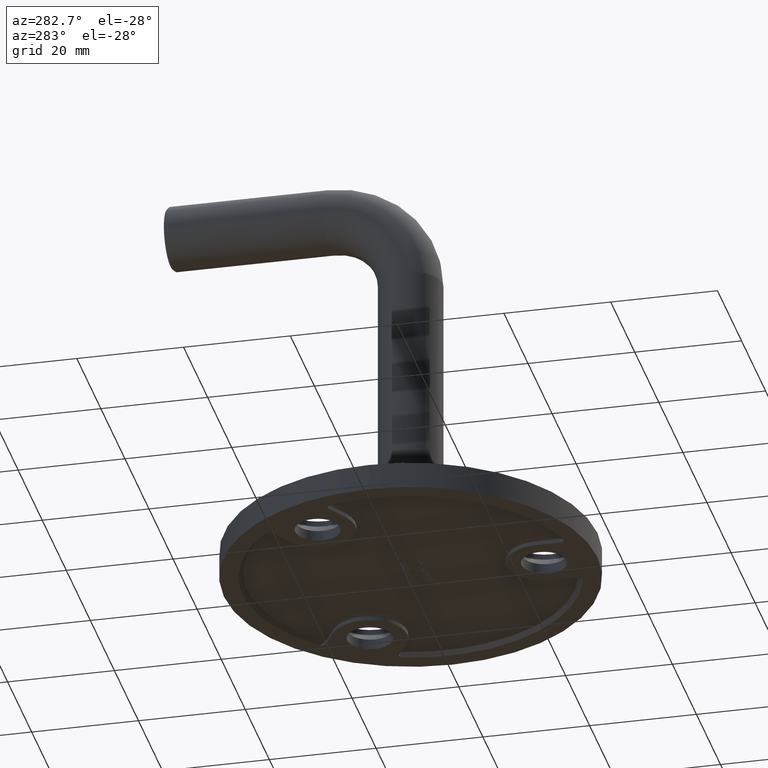
[diagram: clean part render]
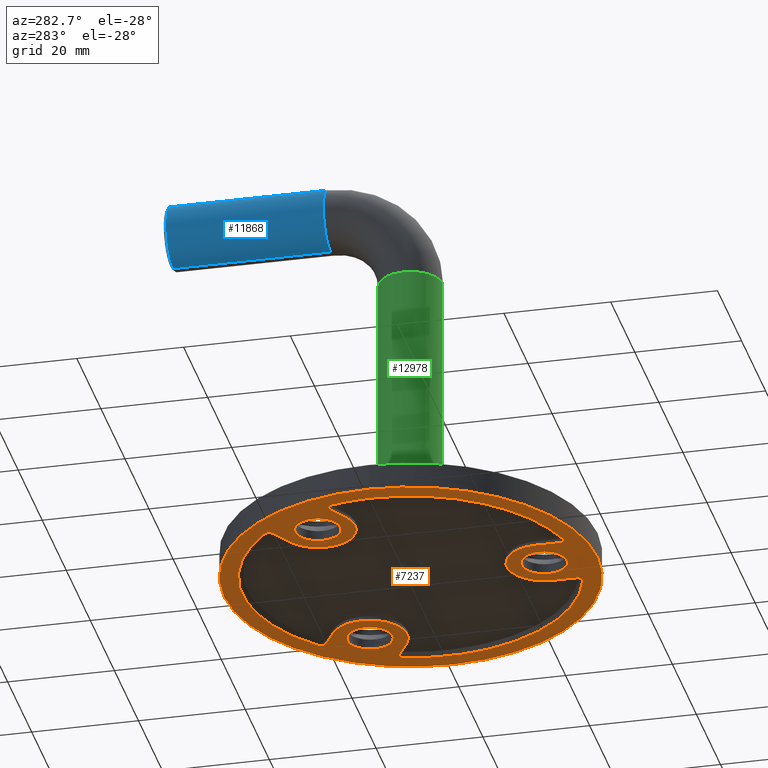
[diagram: same view with three faces highlighted in distinct colors, each labeled with its STEP entity id]
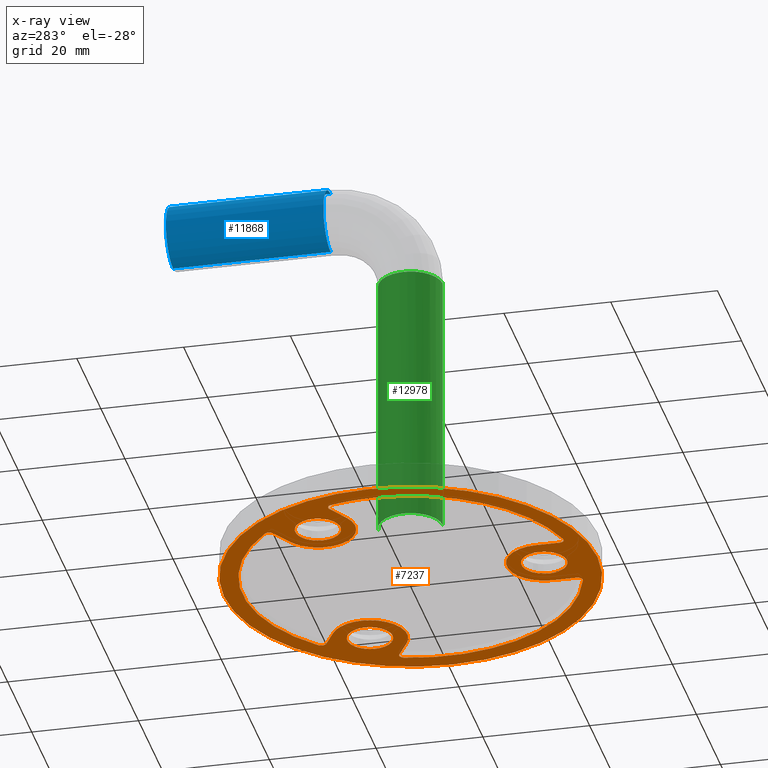
[diagram: x-ray of the same camera — body ghosted, the three highlighted faces saturated]
A machine part, auxiliary view with three faces highlighted in distinct colors.
The next image is the same camera in x-ray (body ghosted, the three faces saturated) — at least one of them is partly hidden behind the body in this view.
Their STEP definitions:

[orange] entity #7237 — the highlighted planar face has unit normal (0, 0, 1).
#19 = AXIS2_PLACEMENT_3D ( 'NONE', #1636, #12571, #5297 ) ;
#47 = DIRECTION ( 'NONE',  ( 0.000000000000000000, -0.000000000000000000, 1.000000000000000000 ) ) ;
#63 = EDGE_CURVE ( 'NONE', #10253, #5619, #292, .T. ) ;
#79 = CIRCLE ( 'NONE', #4569, 7.000000000000000888 ) ;
#117 = CARTESIAN_POINT ( 'NONE',  ( 0.000000000000000000, 0.000000000000000000, 0.000000000000000000 ) ) ;
#179 = FACE_BOUND ( 'NONE', #9836, .T. ) ;
#184 = DIRECTION ( 'NONE',  ( 1.000000000000000000, 0.000000000000000000, 0.000000000000000000 ) ) ;
#280 = ORIENTED_EDGE ( 'NONE', *, *, #14609, .T. ) ;
#292 = LINE ( 'NONE', #11759, #3884 ) ;
#293 = CARTESIAN_POINT ( 'NONE',  ( 0.000000000000000000, -25.00000000000000000, 0.000000000000000000 ) ) ;
#397 = EDGE_CURVE ( 'NONE', #12085, #13762, #4830, .T. ) ;
#404 = EDGE_CURVE ( 'NONE', #7116, #9426, #5951, .T. ) ;
#458 = VERTEX_POINT ( 'NONE', #6313 ) ;
#605 = CARTESIAN_POINT ( 'NONE',  ( -29.48896820194971724, 7.787859422485657213, 0.000000000000000000 ) ) ;
#614 = VERTEX_POINT ( 'NONE', #1264 ) ;
#644 = EDGE_CURVE ( 'NONE', #2695, #3890, #13179, .T. ) ;
#698 = DIRECTION ( 'NONE',  ( 0.000000000000000000, -0.000000000000000000, -1.000000000000000000 ) ) ;
#789 = DIRECTION ( 'NONE',  ( -1.000000000000000000, 0.000000000000000000, 0.000000000000000000 ) ) ;
#841 = DIRECTION ( 'NONE',  ( 0.000000000000000000, 0.000000000000000000, -1.000000000000000000 ) ) ;
#873 = CIRCLE ( 'NONE', #3705, 4.250000000000000000 ) ;
#884 = CARTESIAN_POINT ( 'NONE',  ( -22.19352453644000889, 22.35391394477565896, 0.000000000000000000 ) ) ;
#991 = CIRCLE ( 'NONE', #4791, 35.00000000000000000 ) ;
#1103 = EDGE_CURVE ( 'NONE', #7207, #2695, #79, .T. ) ;
#1264 = CARTESIAN_POINT ( 'NONE',  ( 8.262295081967211630, -30.39711302045805752, 0.000000000000000000 ) ) ;
#1267 = ORIENTED_EDGE ( 'NONE', *, *, #6871, .F. ) ;
#1471 = CARTESIAN_POINT ( 'NONE',  ( 6.999999999999999112, -29.43212530552288086, -0.000000000000000000 ) ) ;
#1492 = ORIENTED_EDGE ( 'NONE', *, *, #397, .T. ) ;
#1515 = EDGE_CURVE ( 'NONE', #1951, #6525, #12030, .T. ) ;
#1594 = VECTOR ( 'NONE', #3576, 1000.000000000000000 ) ;
#1636 = CARTESIAN_POINT ( 'NONE',  ( 0.000000000000000000, 0.000000000000000000, 0.000000000000000000 ) ) ;
#1702 = CIRCLE ( 'NONE', #9381, 0.9999999999999985567 ) ;
#1839 = DIRECTION ( 'NONE',  ( 0.000000000000000000, -0.000000000000000000, -1.000000000000000000 ) ) ;
#1851 = CIRCLE ( 'NONE', #8233, 0.9999999999999985567 ) ;
#1951 = VERTEX_POINT ( 'NONE', #15226 ) ;
#2045 = CARTESIAN_POINT ( 'NONE',  ( -8.000000000000000000, -29.43212530552288086, 0.000000000000000000 ) ) ;
#2154 = EDGE_LOOP ( 'NONE', ( #13505, #5982 ) ) ;
#2209 = EDGE_CURVE ( 'NONE', #7378, #7810, #991, .T. ) ;
#2321 = VERTEX_POINT ( 'NONE', #4692 ) ;
#2492 = DIRECTION ( 'NONE',  ( 0.5000000000000039968, -0.8660254037844364872, 0.000000000000000000 ) ) ;
#2534 = EDGE_CURVE ( 'NONE', #6081, #14891, #3649, .T. ) ;
#2664 = DIRECTION ( 'NONE',  ( 0.8660254037844363761, 0.5000000000000039968, 0.000000000000000000 ) ) ;
#2695 = VERTEX_POINT ( 'NONE', #11308 ) ;
#2798 = DIRECTION ( 'NONE',  ( -1.000000000000000000, 0.000000000000000000, 0.000000000000000000 ) ) ;
#2821 = DIRECTION ( 'NONE',  ( 0.5000000000000043299, -0.8660254037844362651, 0.000000000000000000 ) ) ;
#2868 = DIRECTION ( 'NONE',  ( 0.000000000000000000, -1.000000000000000000, 0.000000000000000000 ) ) ;
#2999 = CARTESIAN_POINT ( 'NONE',  ( 29.48896820194961421, 7.787859422486070216, 0.000000000000000000 ) ) ;
#3098 = AXIS2_PLACEMENT_3D ( 'NONE', #15090, #14261, #7885 ) ;
#3154 = CARTESIAN_POINT ( 'NONE',  ( -22.48896820194985224, 21.64426588303675203, 0.000000000000000000 ) ) ;
#3184 = DIRECTION ( 'NONE',  ( 0.000000000000000000, 0.000000000000000000, 1.000000000000000000 ) ) ;
#3250 = ORIENTED_EDGE ( 'NONE', *, *, #3898, .T. ) ;
#3271 = AXIS2_PLACEMENT_3D ( 'NONE', #2045, #10382, #14137 ) ;
#3279 = VERTEX_POINT ( 'NONE', #884 ) ;
#3371 = AXIS2_PLACEMENT_3D ( 'NONE', #7981, #1839, #15290 ) ;
#3404 = CARTESIAN_POINT ( 'NONE',  ( 0.000000000000000000, 0.000000000000000000, 0.000000000000000000 ) ) ;
#3468 = CARTESIAN_POINT ( 'NONE',  ( -6.999999999999999112, -25.00000000000000000, 0.000000000000000000 ) ) ;
#3569 = CARTESIAN_POINT ( 'NONE',  ( 25.15063509461094071, 6.437822173509048618, 0.000000000000000000 ) ) ;
#3576 = DIRECTION ( 'NONE',  ( -0.000000000000000000, 1.000000000000000000, -0.000000000000000000 ) ) ;
#3591 = EDGE_CURVE ( 'NONE', #13762, #10253, #7216, .T. ) ;
#3648 = CARTESIAN_POINT ( 'NONE',  ( 0.000000000000000000, -25.00000000000000000, 0.000000000000000000 ) ) ;
#3649 = CIRCLE ( 'NONE', #7416, 6.999999999999999112 ) ;
#3705 = AXIS2_PLACEMENT_3D ( 'NONE', #8519, #15585, #10912 ) ;
#3884 = VECTOR ( 'NONE', #2868, 1000.000000000000000 ) ;
#3890 = VERTEX_POINT ( 'NONE', #11250 ) ;
#3898 = EDGE_CURVE ( 'NONE', #12417, #2321, #1702, .T. ) ;
#3961 = VERTEX_POINT ( 'NONE', #6714 ) ;
#4091 = DIRECTION ( 'NONE',  ( -0.5000000000000041078, 0.8660254037844362651, 0.000000000000000000 ) ) ;
#4164 = EDGE_CURVE ( 'NONE', #14143, #9961, #13942, .T. ) ;
#4278 = CARTESIAN_POINT ( 'NONE',  ( -8.262295081967213406, -30.39711302045805397, 0.000000000000000000 ) ) ;
#4373 = EDGE_CURVE ( 'NONE', #9426, #7116, #873, .T. ) ;
#4395 = AXIS2_PLACEMENT_3D ( 'NONE', #14433, #15638, #12147 ) ;
#4569 = AXIS2_PLACEMENT_3D ( 'NONE', #7987, #698, #12794 ) ;
#4659 = EDGE_CURVE ( 'NONE', #3890, #7316, #11114, .T. ) ;
#4692 = CARTESIAN_POINT ( 'NONE',  ( -21.98896820194984159, 20.77824047925230744, 0.000000000000000000 ) ) ;
#4742 = AXIS2_PLACEMENT_3D ( 'NONE', #6132, #47, #8524 ) ;
#4791 = AXIS2_PLACEMENT_3D ( 'NONE', #14534, #8497, #184 ) ;
#4830 = LINE ( 'NONE', #3468, #1594 ) ;
#4840 = ORIENTED_EDGE ( 'NONE', *, *, #12706, .T. ) ;
#5072 = DIRECTION ( 'NONE',  ( -0.8660254037844432595, 0.4999999999999919509, 0.000000000000000000 ) ) ;
#5153 = AXIS2_PLACEMENT_3D ( 'NONE', #11471, #13752, #2821 ) ;
#5206 = ORIENTED_EDGE ( 'NONE', *, *, #7346, .T. ) ;
#5218 = EDGE_CURVE ( 'NONE', #3279, #14523, #12745, .T. ) ;
#5297 = DIRECTION ( 'NONE',  ( 1.000000000000000000, 0.000000000000000000, -0.000000000000000000 ) ) ;
#5393 = DIRECTION ( 'NONE',  ( 0.000000000000000000, -0.000000000000000000, -1.000000000000000000 ) ) ;
#5452 = CARTESIAN_POINT ( 'NONE',  ( -35.00000000000000000, 0.000000000000000000, 0.000000000000000000 ) ) ;
#5517 = DIRECTION ( 'NONE',  ( 0.000000000000000000, 0.000000000000000000, 1.000000000000000000 ) ) ;
#5540 = ORIENTED_EDGE ( 'NONE', *, *, #63, .T. ) ;
#5613 = DIRECTION ( 'NONE',  ( 0.000000000000000000, 0.000000000000000000, 1.000000000000000000 ) ) ;
#5619 = VERTEX_POINT ( 'NONE', #1471 ) ;
#5620 = AXIS2_PLACEMENT_3D ( 'NONE', #117, #7451, #13572 ) ;
#5696 = ORIENTED_EDGE ( 'NONE', *, *, #5218, .F. ) ;
#5951 = CIRCLE ( 'NONE', #9947, 4.250000000000000000 ) ;
#5982 = ORIENTED_EDGE ( 'NONE', *, *, #1515, .F. ) ;
#5994 = CARTESIAN_POINT ( 'NONE',  ( 4.250000000000000000, -25.00000000000000000, 0.000000000000000000 ) ) ;
#6081 = VERTEX_POINT ( 'NONE', #3569 ) ;
#6112 = CIRCLE ( 'NONE', #3271, 0.9999999999999991118 ) ;
#6132 = CARTESIAN_POINT ( 'NONE',  ( 8.000000000000000000, -29.43212530552288086, -0.000000000000000000 ) ) ;
#6187 = DIRECTION ( 'NONE',  ( 0.000000000000000000, 0.000000000000000000, -1.000000000000000000 ) ) ;
#6219 = DIRECTION ( 'NONE',  ( -1.000000000000000000, 0.000000000000000000, 0.000000000000000000 ) ) ;
#6242 = AXIS2_PLACEMENT_3D ( 'NONE', #605, #3184, #10401 ) ;
#6303 = EDGE_CURVE ( 'NONE', #8814, #458, #14387, .T. ) ;
#6313 = CARTESIAN_POINT ( 'NONE',  ( 17.40063509461091229, 12.49999999999995737, 0.000000000000000000 ) ) ;
#6350 = CARTESIAN_POINT ( 'NONE',  ( 0.000000000000000000, 0.000000000000000000, 0.000000000000000000 ) ) ;
#6525 = VERTEX_POINT ( 'NONE', #8787 ) ;
#6586 = ORIENTED_EDGE ( 'NONE', *, *, #3591, .T. ) ;
#6602 = EDGE_LOOP ( 'NONE', ( #10675, #8416, #1492, #6586, #5540, #4840, #12418, #5206, #8783, #13921, #15615, #280, #11256, #5696, #14062, #3250, #9312, #10684, #14452, #13012, #15313 ) ) ;
#6618 = CARTESIAN_POINT ( 'NONE',  ( -7.000000000000000888, -29.43212530552288086, 0.000000000000000000 ) ) ;
#6714 = CARTESIAN_POINT ( 'NONE',  ( 21.98896820194955382, 20.77824047925261652, 0.000000000000000000 ) ) ;
#6807 = DIRECTION ( 'NONE',  ( -0.5000000000000041078, 0.8660254037844362651, 0.000000000000000000 ) ) ;
#6820 = DIRECTION ( 'NONE',  ( 0.5000000000000043299, -0.8660254037844362651, 0.000000000000000000 ) ) ;
#6871 = EDGE_CURVE ( 'NONE', #7810, #7378, #6975, .T. ) ;
#6944 = CARTESIAN_POINT ( 'NONE',  ( 21.65063509461091584, 12.50000000000010303, 0.000000000000000000 ) ) ;
#6960 = EDGE_CURVE ( 'NONE', #14891, #13362, #13089, .T. ) ;
#6975 = CIRCLE ( 'NONE', #7551, 35.00000000000000000 ) ;
#7024 = AXIS2_PLACEMENT_3D ( 'NONE', #7870, #5393, #9105 ) ;
#7045 = CARTESIAN_POINT ( 'NONE',  ( 14.65063509461091584, 12.50000000000010303, 0.000000000000000000 ) ) ;
#7116 = VERTEX_POINT ( 'NONE', #5994 ) ;
#7207 = VERTEX_POINT ( 'NONE', #12627 ) ;
#7216 = CIRCLE ( 'NONE', #15525, 6.999999999999999112 ) ;
#7224 = CARTESIAN_POINT ( 'NONE',  ( 18.15063509461088742, 18.56217782649115833, 0.000000000000000000 ) ) ;
#7237 = ADVANCED_FACE ( 'NONE', ( #11363, #10805, #7553, #179, #12517 ), #8908, .F. ) ;
#7316 = VERTEX_POINT ( 'NONE', #12845 ) ;
#7336 = CIRCLE ( 'NONE', #5153, 4.250000000000001776 ) ;
#7346 = EDGE_CURVE ( 'NONE', #11731, #11107, #13272, .T. ) ;
#7378 = VERTEX_POINT ( 'NONE', #5452 ) ;
#7416 = AXIS2_PLACEMENT_3D ( 'NONE', #6944, #12079, #2492 ) ;
#7451 = DIRECTION ( 'NONE',  ( 0.000000000000000000, 0.000000000000000000, -1.000000000000000000 ) ) ;
#7551 = AXIS2_PLACEMENT_3D ( 'NONE', #3404, #5517, #13991 ) ;
#7553 = FACE_BOUND ( 'NONE', #8499, .T. ) ;
#7810 = VERTEX_POINT ( 'NONE', #14037 ) ;
#7870 = CARTESIAN_POINT ( 'NONE',  ( -21.65063509461108282, 12.49999999999979927, 0.000000000000000000 ) ) ;
#7885 = DIRECTION ( 'NONE',  ( 0.5000000000000039968, -0.8660254037844364872, 0.000000000000000000 ) ) ;
#7918 = CIRCLE ( 'NONE', #4395, 31.50000000000000711 ) ;
#7981 = CARTESIAN_POINT ( 'NONE',  ( -21.65063509461108282, 12.49999999999979927, 0.000000000000000000 ) ) ;
#7987 = CARTESIAN_POINT ( 'NONE',  ( -21.65063509461108282, 12.49999999999979927, 0.000000000000000000 ) ) ;
#8063 = CARTESIAN_POINT ( 'NONE',  ( -4.250000000000000000, -25.00000000000000000, 0.000000000000000000 ) ) ;
#8231 = DIRECTION ( 'NONE',  ( 0.000000000000000000, 0.000000000000000000, 1.000000000000000000 ) ) ;
#8233 = AXIS2_PLACEMENT_3D ( 'NONE', #15478, #8231, #15376 ) ;
#8304 = CARTESIAN_POINT ( 'NONE',  ( -18.15063509461113966, 18.56217782649090253, 0.000000000000000000 ) ) ;
#8416 = ORIENTED_EDGE ( 'NONE', *, *, #9045, .T. ) ;
#8417 = VECTOR ( 'NONE', #2664, 999.9999999999998863 ) ;
#8447 = EDGE_CURVE ( 'NONE', #2321, #7207, #11948, .T. ) ;
#8497 = DIRECTION ( 'NONE',  ( 0.000000000000000000, 0.000000000000000000, 1.000000000000000000 ) ) ;
#8499 = EDGE_LOOP ( 'NONE', ( #11998, #13501 ) ) ;
#8519 = CARTESIAN_POINT ( 'NONE',  ( 0.000000000000000000, -25.00000000000000000, 0.000000000000000000 ) ) ;
#8524 = DIRECTION ( 'NONE',  ( 1.000000000000000000, 0.000000000000000000, 0.000000000000000000 ) ) ;
#8630 = EDGE_CURVE ( 'NONE', #3279, #12417, #1851, .T. ) ;
#8666 = CIRCLE ( 'NONE', #14259, 0.9999999999999995559 ) ;
#8709 = VECTOR ( 'NONE', #11772, 1000.000000000000000 ) ;
#8783 = ORIENTED_EDGE ( 'NONE', *, *, #13207, .T. ) ;
#8787 = CARTESIAN_POINT ( 'NONE',  ( -25.90063509461108282, 12.49999999999994138, 0.000000000000000000 ) ) ;
#8814 = VERTEX_POINT ( 'NONE', #11849 ) ;
#8849 = CIRCLE ( 'NONE', #10745, 31.50000000000000711 ) ;
#8908 = PLANE ( 'NONE',  #19 ) ;
#8909 = CARTESIAN_POINT ( 'NONE',  ( 21.48896820194955026, 21.64426588303705756, 0.000000000000000000 ) ) ;
#8917 = DIRECTION ( 'NONE',  ( -0.4999999999999907296, -0.8660254037844440367, 0.000000000000000000 ) ) ;
#9007 = CARTESIAN_POINT ( 'NONE',  ( 30.45581961840698071, 8.043199075682332833, 0.000000000000000000 ) ) ;
#9013 = CARTESIAN_POINT ( 'NONE',  ( -21.48896820194984869, 21.64426588303675203, 0.000000000000000000 ) ) ;
#9045 = EDGE_CURVE ( 'NONE', #14143, #12085, #6112, .T. ) ;
#9105 = DIRECTION ( 'NONE',  ( 0.4999999999999920619, 0.8660254037844432595, 0.000000000000000000 ) ) ;
#9312 = ORIENTED_EDGE ( 'NONE', *, *, #8447, .T. ) ;
#9381 = AXIS2_PLACEMENT_3D ( 'NONE', #9013, #10081, #8917 ) ;
#9426 = VERTEX_POINT ( 'NONE', #8063 ) ;
#9437 = DIRECTION ( 'NONE',  ( -0.000000000000000000, 0.000000000000000000, -1.000000000000000000 ) ) ;
#9681 = DIRECTION ( 'NONE',  ( -1.000000000000000000, 0.000000000000000000, 0.000000000000000000 ) ) ;
#9764 = CARTESIAN_POINT ( 'NONE',  ( 6.999999999999999112, -25.00000000000000000, 0.000000000000000000 ) ) ;
#9790 = ORIENTED_EDGE ( 'NONE', *, *, #13037, .F. ) ;
#9800 = AXIS2_PLACEMENT_3D ( 'NONE', #6350, #14778, #2798 ) ;
#9824 = DIRECTION ( 'NONE',  ( 0.000000000000000000, 0.000000000000000000, -1.000000000000000000 ) ) ;
#9836 = EDGE_LOOP ( 'NONE', ( #9790, #10330 ) ) ;
#9918 = CARTESIAN_POINT ( 'NONE',  ( 18.15063509461088742, 18.56217782649115833, 0.000000000000000000 ) ) ;
#9947 = AXIS2_PLACEMENT_3D ( 'NONE', #293, #9824, #6219 ) ;
#9957 = CIRCLE ( 'NONE', #4742, 0.9999999999999991118 ) ;
#9961 = VERTEX_POINT ( 'NONE', #13892 ) ;
#10081 = DIRECTION ( 'NONE',  ( 0.000000000000000000, 0.000000000000000000, 1.000000000000000000 ) ) ;
#10253 = VERTEX_POINT ( 'NONE', #9764 ) ;
#10330 = ORIENTED_EDGE ( 'NONE', *, *, #6303, .F. ) ;
#10382 = DIRECTION ( 'NONE',  ( 0.000000000000000000, -0.000000000000000000, 1.000000000000000000 ) ) ;
#10401 = DIRECTION ( 'NONE',  ( -0.4999999999999907296, -0.8660254037844440367, 0.000000000000000000 ) ) ;
#10608 = CARTESIAN_POINT ( 'NONE',  ( 25.15063509461094071, 6.437822173509048618, 0.000000000000000000 ) ) ;
#10675 = ORIENTED_EDGE ( 'NONE', *, *, #4164, .F. ) ;
#10684 = ORIENTED_EDGE ( 'NONE', *, *, #1103, .T. ) ;
#10745 = AXIS2_PLACEMENT_3D ( 'NONE', #11354, #841, #789 ) ;
#10805 = FACE_OUTER_BOUND ( 'NONE', #12382, .T. ) ;
#10912 = DIRECTION ( 'NONE',  ( -1.000000000000000000, 0.000000000000000000, 0.000000000000000000 ) ) ;
#11076 = EDGE_CURVE ( 'NONE', #11731, #614, #7918, .T. ) ;
#11107 = VERTEX_POINT ( 'NONE', #14492 ) ;
#11114 = CIRCLE ( 'NONE', #6242, 0.9999999999999985567 ) ;
#11250 = CARTESIAN_POINT ( 'NONE',  ( -28.98896820194972790, 8.653884826270100916, 0.000000000000000000 ) ) ;
#11256 = ORIENTED_EDGE ( 'NONE', *, *, #15198, .T. ) ;
#11308 = CARTESIAN_POINT ( 'NONE',  ( -25.15063509461102953, 6.437822173508696899, 0.000000000000000000 ) ) ;
#11354 = CARTESIAN_POINT ( 'NONE',  ( 0.000000000000000000, 0.000000000000000000, 0.000000000000000000 ) ) ;
#11363 = FACE_BOUND ( 'NONE', #6602, .T. ) ;
#11388 = AXIS2_PLACEMENT_3D ( 'NONE', #2999, #5613, #6807 ) ;
#11471 = CARTESIAN_POINT ( 'NONE',  ( 21.65063509461091584, 12.50000000000010303, 0.000000000000000000 ) ) ;
#11731 = VERTEX_POINT ( 'NONE', #9007 ) ;
#11759 = CARTESIAN_POINT ( 'NONE',  ( 6.999999999999999112, -25.00000000000000000, -0.000000000000000000 ) ) ;
#11772 = DIRECTION ( 'NONE',  ( 0.8660254037844432595, -0.4999999999999919509, 0.000000000000000000 ) ) ;
#11780 = EDGE_CURVE ( 'NONE', #9961, #7316, #8849, .T. ) ;
#11849 = CARTESIAN_POINT ( 'NONE',  ( 25.90063509461091584, 12.49999999999995737, 0.000000000000000000 ) ) ;
#11948 = LINE ( 'NONE', #8304, #8709 ) ;
#11998 = ORIENTED_EDGE ( 'NONE', *, *, #4373, .F. ) ;
#12009 = CARTESIAN_POINT ( 'NONE',  ( -6.999999999999999112, -25.00000000000000000, 0.000000000000000000 ) ) ;
#12030 = CIRCLE ( 'NONE', #3371, 4.250000000000001776 ) ;
#12079 = DIRECTION ( 'NONE',  ( -0.000000000000000000, 0.000000000000000000, -1.000000000000000000 ) ) ;
#12085 = VERTEX_POINT ( 'NONE', #6618 ) ;
#12147 = DIRECTION ( 'NONE',  ( -1.000000000000000000, 0.000000000000000000, 0.000000000000000000 ) ) ;
#12284 = VECTOR ( 'NONE', #14314, 999.9999999999998863 ) ;
#12382 = EDGE_LOOP ( 'NONE', ( #13757, #1267 ) ) ;
#12417 = VERTEX_POINT ( 'NONE', #3154 ) ;
#12418 = ORIENTED_EDGE ( 'NONE', *, *, #11076, .F. ) ;
#12517 = FACE_BOUND ( 'NONE', #2154, .T. ) ;
#12571 = DIRECTION ( 'NONE',  ( 0.000000000000000000, 0.000000000000000000, 1.000000000000000000 ) ) ;
#12627 = CARTESIAN_POINT ( 'NONE',  ( -18.15063509461113966, 18.56217782649090253, 0.000000000000000000 ) ) ;
#12706 = EDGE_CURVE ( 'NONE', #5619, #614, #9957, .T. ) ;
#12745 = CIRCLE ( 'NONE', #9800, 31.50000000000000711 ) ;
#12794 = DIRECTION ( 'NONE',  ( 0.4999999999999919509, 0.8660254037844432595, 0.000000000000000000 ) ) ;
#12827 = CARTESIAN_POINT ( 'NONE',  ( 22.19352453643969625, 22.35391394477596450, 0.000000000000000000 ) ) ;
#12845 = CARTESIAN_POINT ( 'NONE',  ( -30.45581961840708729, 8.043199075681910060, 0.000000000000000000 ) ) ;
#13012 = ORIENTED_EDGE ( 'NONE', *, *, #4659, .T. ) ;
#13037 = EDGE_CURVE ( 'NONE', #458, #8814, #7336, .T. ) ;
#13089 = CIRCLE ( 'NONE', #3098, 6.999999999999999112 ) ;
#13179 = LINE ( 'NONE', #13412, #15012 ) ;
#13207 = EDGE_CURVE ( 'NONE', #11107, #6081, #13413, .T. ) ;
#13272 = CIRCLE ( 'NONE', #11388, 0.9999999999999995559 ) ;
#13362 = VERTEX_POINT ( 'NONE', #9918 ) ;
#13412 = CARTESIAN_POINT ( 'NONE',  ( -25.15063509461102953, 6.437822173508696899, 0.000000000000000000 ) ) ;
#13413 = LINE ( 'NONE', #10608, #12284 ) ;
#13464 = EDGE_CURVE ( 'NONE', #6525, #1951, #13901, .T. ) ;
#13501 = ORIENTED_EDGE ( 'NONE', *, *, #404, .F. ) ;
#13505 = ORIENTED_EDGE ( 'NONE', *, *, #13464, .F. ) ;
#13572 = DIRECTION ( 'NONE',  ( -1.000000000000000000, 0.000000000000000000, 0.000000000000000000 ) ) ;
#13752 = DIRECTION ( 'NONE',  ( -0.000000000000000000, 0.000000000000000000, -1.000000000000000000 ) ) ;
#13757 = ORIENTED_EDGE ( 'NONE', *, *, #2209, .F. ) ;
#13762 = VERTEX_POINT ( 'NONE', #12009 ) ;
#13892 = CARTESIAN_POINT ( 'NONE',  ( -31.50000000000000000, 0.000000000000000000, 0.000000000000000000 ) ) ;
#13901 = CIRCLE ( 'NONE', #7024, 4.250000000000001776 ) ;
#13921 = ORIENTED_EDGE ( 'NONE', *, *, #2534, .T. ) ;
#13942 = CIRCLE ( 'NONE', #5620, 31.50000000000000711 ) ;
#13991 = DIRECTION ( 'NONE',  ( 1.000000000000000000, 0.000000000000000000, 0.000000000000000000 ) ) ;
#14037 = CARTESIAN_POINT ( 'NONE',  ( 35.00000000000000000, 4.286263797015736496E-15, 0.000000000000000000 ) ) ;
#14062 = ORIENTED_EDGE ( 'NONE', *, *, #8630, .T. ) ;
#14137 = DIRECTION ( 'NONE',  ( 1.000000000000000000, 0.000000000000000000, 0.000000000000000000 ) ) ;
#14143 = VERTEX_POINT ( 'NONE', #4278 ) ;
#14154 = AXIS2_PLACEMENT_3D ( 'NONE', #15399, #9437, #6820 ) ;
#14259 = AXIS2_PLACEMENT_3D ( 'NONE', #8909, #15079, #4091 ) ;
#14261 = DIRECTION ( 'NONE',  ( -0.000000000000000000, 0.000000000000000000, -1.000000000000000000 ) ) ;
#14314 = DIRECTION ( 'NONE',  ( -0.8660254037844363761, -0.5000000000000039968, 0.000000000000000000 ) ) ;
#14387 = CIRCLE ( 'NONE', #14154, 4.250000000000001776 ) ;
#14433 = CARTESIAN_POINT ( 'NONE',  ( 0.000000000000000000, 0.000000000000000000, 0.000000000000000000 ) ) ;
#14452 = ORIENTED_EDGE ( 'NONE', *, *, #644, .T. ) ;
#14492 = CARTESIAN_POINT ( 'NONE',  ( 28.98896820194961421, 8.653884826270505926, 0.000000000000000000 ) ) ;
#14523 = VERTEX_POINT ( 'NONE', #12827 ) ;
#14534 = CARTESIAN_POINT ( 'NONE',  ( 0.000000000000000000, 0.000000000000000000, 0.000000000000000000 ) ) ;
#14609 = EDGE_CURVE ( 'NONE', #13362, #3961, #15023, .T. ) ;
#14778 = DIRECTION ( 'NONE',  ( 0.000000000000000000, 0.000000000000000000, -1.000000000000000000 ) ) ;
#14891 = VERTEX_POINT ( 'NONE', #7045 ) ;
#15012 = VECTOR ( 'NONE', #5072, 1000.000000000000000 ) ;
#15023 = LINE ( 'NONE', #7224, #8417 ) ;
#15079 = DIRECTION ( 'NONE',  ( 0.000000000000000000, 0.000000000000000000, 1.000000000000000000 ) ) ;
#15090 = CARTESIAN_POINT ( 'NONE',  ( 21.65063509461091584, 12.50000000000010303, 0.000000000000000000 ) ) ;
#15198 = EDGE_CURVE ( 'NONE', #3961, #14523, #8666, .T. ) ;
#15226 = CARTESIAN_POINT ( 'NONE',  ( -17.40063509461108282, 12.49999999999994138, 0.000000000000000000 ) ) ;
#15290 = DIRECTION ( 'NONE',  ( 0.4999999999999920619, 0.8660254037844432595, 0.000000000000000000 ) ) ;
#15313 = ORIENTED_EDGE ( 'NONE', *, *, #11780, .F. ) ;
#15376 = DIRECTION ( 'NONE',  ( -0.4999999999999907296, -0.8660254037844440367, 0.000000000000000000 ) ) ;
#15399 = CARTESIAN_POINT ( 'NONE',  ( 21.65063509461091584, 12.50000000000010303, 0.000000000000000000 ) ) ;
#15478 = CARTESIAN_POINT ( 'NONE',  ( -21.48896820194984869, 21.64426588303675203, 0.000000000000000000 ) ) ;
#15525 = AXIS2_PLACEMENT_3D ( 'NONE', #3648, #6187, #9681 ) ;
#15585 = DIRECTION ( 'NONE',  ( 0.000000000000000000, 0.000000000000000000, -1.000000000000000000 ) ) ;
#15615 = ORIENTED_EDGE ( 'NONE', *, *, #6960, .T. ) ;
#15638 = DIRECTION ( 'NONE',  ( 0.000000000000000000, 0.000000000000000000, -1.000000000000000000 ) ) ;

[blue] entity #11868 — the highlighted cylindrical surface (edge-blend (fillet) strip) has radius 6 mm, axis along (0, 1, 0).
#20 = DIRECTION ( 'NONE',  ( 0.000000000000000000, 0.000000000000000000, -1.000000000000000000 ) ) ;
#281 = DIRECTION ( 'NONE',  ( 0.000000000000000000, 1.000000000000000000, 0.000000000000000000 ) ) ;
#758 = CARTESIAN_POINT ( 'NONE',  ( 7.347880794884114806E-16, 14.99999999999999289, 68.99999999999998579 ) ) ;
#1190 = DIRECTION ( 'NONE',  ( 0.000000000000000000, 0.000000000000000000, 1.000000000000000000 ) ) ;
#1295 = VECTOR ( 'NONE', #281, 1000.000000000000000 ) ;
#1432 = CARTESIAN_POINT ( 'NONE',  ( 7.347880794884120722E-16, 14.99999999999999289, 68.99999999999998579 ) ) ;
#2438 = DIRECTION ( 'NONE',  ( -0.000000000000000000, -1.000000000000000000, -0.000000000000000000 ) ) ;
#2626 = LINE ( 'NONE', #6080, #6780 ) ;
#2765 = FACE_OUTER_BOUND ( 'NONE', #11880, .T. ) ;
#3197 = CARTESIAN_POINT ( 'NONE',  ( 0.000000000000000000, 14.99999999999999289, 75.00000000000000000 ) ) ;
#3320 = AXIS2_PLACEMENT_3D ( 'NONE', #7273, #9619, #1190 ) ;
#4029 = CARTESIAN_POINT ( 'NONE',  ( 0.000000000000000000, 44.49999999999999289, 81.00000000000000000 ) ) ;
#4649 = AXIS2_PLACEMENT_3D ( 'NONE', #7258, #2438, #20 ) ;
#4878 = DIRECTION ( 'NONE',  ( 0.000000000000000000, 1.000000000000000000, 0.000000000000000000 ) ) ;
#5400 = VERTEX_POINT ( 'NONE', #9425 ) ;
#5437 = AXIS2_PLACEMENT_3D ( 'NONE', #3197, #5646, #14284 ) ;
#5646 = DIRECTION ( 'NONE',  ( 0.000000000000000000, -1.000000000000000000, -6.123233995736766036E-17 ) ) ;
#5718 = ORIENTED_EDGE ( 'NONE', *, *, #10643, .T. ) ;
#5849 = ORIENTED_EDGE ( 'NONE', *, *, #7078, .T. ) ;
#6055 = VERTEX_POINT ( 'NONE', #758 ) ;
#6080 = CARTESIAN_POINT ( 'NONE',  ( 0.000000000000000000, 14.99999999999999289, 81.00000000000000000 ) ) ;
#6780 = VECTOR ( 'NONE', #4878, 1000.000000000000000 ) ;
#7078 = EDGE_CURVE ( 'NONE', #13964, #5400, #13290, .T. ) ;
#7258 = CARTESIAN_POINT ( 'NONE',  ( 0.000000000000000000, 44.49999999999999289, 75.00000000000000000 ) ) ;
#7273 = CARTESIAN_POINT ( 'NONE',  ( 0.000000000000000000, 14.99999999999999289, 75.00000000000000000 ) ) ;
#8317 = EDGE_CURVE ( 'NONE', #6055, #5400, #13999, .T. ) ;
#8670 = CYLINDRICAL_SURFACE ( 'NONE', #3320, 6.000000000000005329 ) ;
#9425 = CARTESIAN_POINT ( 'NONE',  ( 7.347880794884114806E-16, 44.49999999999999289, 68.99999999999998579 ) ) ;
#9619 = DIRECTION ( 'NONE',  ( 0.000000000000000000, 1.000000000000000000, 0.000000000000000000 ) ) ;
#9954 = ORIENTED_EDGE ( 'NONE', *, *, #8317, .F. ) ;
#10277 = CARTESIAN_POINT ( 'NONE',  ( 0.000000000000000000, 14.99999999999999289, 81.00000000000000000 ) ) ;
#10643 = EDGE_CURVE ( 'NONE', #11667, #13964, #2626, .T. ) ;
#10964 = EDGE_CURVE ( 'NONE', #11667, #6055, #11954, .T. ) ;
#11667 = VERTEX_POINT ( 'NONE', #10277 ) ;
#11868 = ADVANCED_FACE ( 'NONE', ( #2765 ), #8670, .T. ) ;
#11880 = EDGE_LOOP ( 'NONE', ( #9954, #14466, #5718, #5849 ) ) ;
#11954 = CIRCLE ( 'NONE', #5437, 6.000000000000000888 ) ;
#13290 = CIRCLE ( 'NONE', #4649, 6.000000000000005329 ) ;
#13964 = VERTEX_POINT ( 'NONE', #4029 ) ;
#13999 = LINE ( 'NONE', #1432, #1295 ) ;
#14284 = DIRECTION ( 'NONE',  ( -1.000000000000000000, 0.000000000000000000, 0.000000000000000000 ) ) ;
#14466 = ORIENTED_EDGE ( 'NONE', *, *, #10964, .F. ) ;

[green] entity #12978 — the highlighted cylindrical surface (edge-blend (fillet) strip) has radius 6 mm, axis along (-0, 0, -1).
#186 = CYLINDRICAL_SURFACE ( 'NONE', #6269, 6.000000000000000888 ) ;
#440 = ORIENTED_EDGE ( 'NONE', *, *, #2260, .T. ) ;
#480 = EDGE_CURVE ( 'NONE', #11722, #5371, #2913, .T. ) ;
#583 = VERTEX_POINT ( 'NONE', #14071 ) ;
#1604 = EDGE_CURVE ( 'NONE', #8609, #583, #15204, .T. ) ;
#2260 = EDGE_CURVE ( 'NONE', #11722, #13173, #2872, .T. ) ;
#2426 = DIRECTION ( 'NONE',  ( 0.000000000000000000, 0.000000000000000000, 1.000000000000000000 ) ) ;
#2872 = CIRCLE ( 'NONE', #9053, 6.000000000000000888 ) ;
#2913 = LINE ( 'NONE', #8611, #9371 ) ;
#3125 = CARTESIAN_POINT ( 'NONE',  ( 0.000000000000000000, 5.999999999999993783, 60.00000000000000000 ) ) ;
#3179 = DIRECTION ( 'NONE',  ( 1.000000000000000000, 0.000000000000000000, 0.000000000000000000 ) ) ;
#3294 = CARTESIAN_POINT ( 'NONE',  ( 0.000000000000000000, -1.156482317317871133E-15, 10.00000000000000178 ) ) ;
#3734 = LINE ( 'NONE', #5089, #4465 ) ;
#3793 = DIRECTION ( 'NONE',  ( 0.000000000000000000, 1.000000000000000000, 0.000000000000000000 ) ) ;
#4025 = DIRECTION ( 'NONE',  ( -0.000000000000000000, 1.156482317317871478E-16, -1.000000000000000000 ) ) ;
#4465 = VECTOR ( 'NONE', #4025, 1000.000000000000000 ) ;
#5089 = CARTESIAN_POINT ( 'NONE',  ( 0.000000000000000000, 5.999999999999993783, 60.00000000000000000 ) ) ;
#5371 = VERTEX_POINT ( 'NONE', #15387 ) ;
#5839 = DIRECTION ( 'NONE',  ( 0.000000000000000000, 0.000000000000000000, 1.000000000000000000 ) ) ;
#6036 = CARTESIAN_POINT ( 'NONE',  ( 0.000000000000000000, -1.156482317317871133E-15, 10.00000000000000178 ) ) ;
#6076 = ORIENTED_EDGE ( 'NONE', *, *, #1604, .T. ) ;
#6223 = DIRECTION ( 'NONE',  ( -0.000000000000000000, 1.156482317317871478E-16, -1.000000000000000000 ) ) ;
#6269 = AXIS2_PLACEMENT_3D ( 'NONE', #7478, #6223, #3793 ) ;
#6792 = FACE_OUTER_BOUND ( 'NONE', #9218, .T. ) ;
#7478 = CARTESIAN_POINT ( 'NONE',  ( 0.000000000000000000, -6.938893903907228378E-15, 60.00000000000000000 ) ) ;
#7714 = AXIS2_PLACEMENT_3D ( 'NONE', #6036, #2426, #13483 ) ;
#8310 = DIRECTION ( 'NONE',  ( 0.000000000000000000, 0.000000000000000000, -1.000000000000000000 ) ) ;
#8609 = VERTEX_POINT ( 'NONE', #13093 ) ;
#8611 = CARTESIAN_POINT ( 'NONE',  ( 7.347880794884120722E-16, -6.000000000000007994, 60.00000000000000000 ) ) ;
#8748 = EDGE_CURVE ( 'NONE', #583, #5371, #13455, .T. ) ;
#8763 = DIRECTION ( 'NONE',  ( -0.000000000000000000, 1.156482317317871478E-16, -1.000000000000000000 ) ) ;
#9053 = AXIS2_PLACEMENT_3D ( 'NONE', #10279, #8310, #13224 ) ;
#9218 = EDGE_LOOP ( 'NONE', ( #12462, #440, #12356, #6076, #13649 ) ) ;
#9371 = VECTOR ( 'NONE', #8763, 1000.000000000000000 ) ;
#10279 = CARTESIAN_POINT ( 'NONE',  ( 0.000000000000000000, -6.938893903907228378E-15, 60.00000000000000000 ) ) ;
#11722 = VERTEX_POINT ( 'NONE', #12630 ) ;
#12323 = EDGE_CURVE ( 'NONE', #13173, #8609, #3734, .T. ) ;
#12356 = ORIENTED_EDGE ( 'NONE', *, *, #12323, .T. ) ;
#12462 = ORIENTED_EDGE ( 'NONE', *, *, #480, .F. ) ;
#12630 = CARTESIAN_POINT ( 'NONE',  ( 7.347880794884123680E-16, -6.000000000000007994, 60.00000000000000000 ) ) ;
#12978 = ADVANCED_FACE ( 'NONE', ( #6792 ), #186, .T. ) ;
#13093 = CARTESIAN_POINT ( 'NONE',  ( 0.000000000000000000, 6.000000000000000888, 10.00000000000000178 ) ) ;
#13173 = VERTEX_POINT ( 'NONE', #3125 ) ;
#13224 = DIRECTION ( 'NONE',  ( -1.000000000000000000, 0.000000000000000000, 0.000000000000000000 ) ) ;
#13455 = CIRCLE ( 'NONE', #15019, 6.000000000000000888 ) ;
#13483 = DIRECTION ( 'NONE',  ( 1.000000000000000000, 0.000000000000000000, 0.000000000000000000 ) ) ;
#13649 = ORIENTED_EDGE ( 'NONE', *, *, #8748, .T. ) ;
#14071 = CARTESIAN_POINT ( 'NONE',  ( -6.000000000000000888, -1.155325380426208949E-16, 10.00000000000000178 ) ) ;
#15019 = AXIS2_PLACEMENT_3D ( 'NONE', #3294, #5839, #3179 ) ;
#15204 = CIRCLE ( 'NONE', #7714, 6.000000000000000888 ) ;
#15387 = CARTESIAN_POINT ( 'NONE',  ( 7.347880794884120722E-16, -6.000000000000001776, 10.00000000000000178 ) ) ;